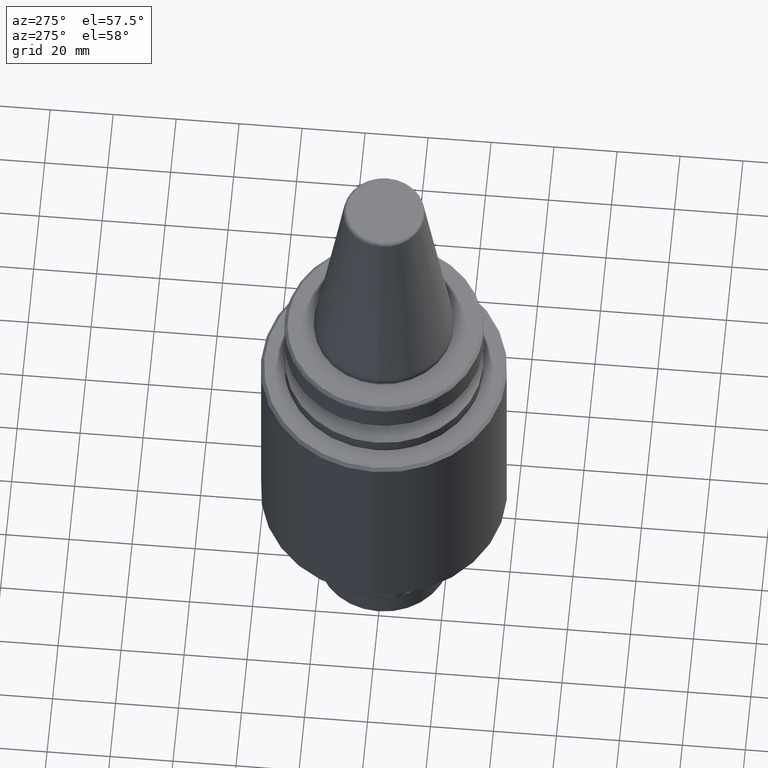
[diagram: clean part render]
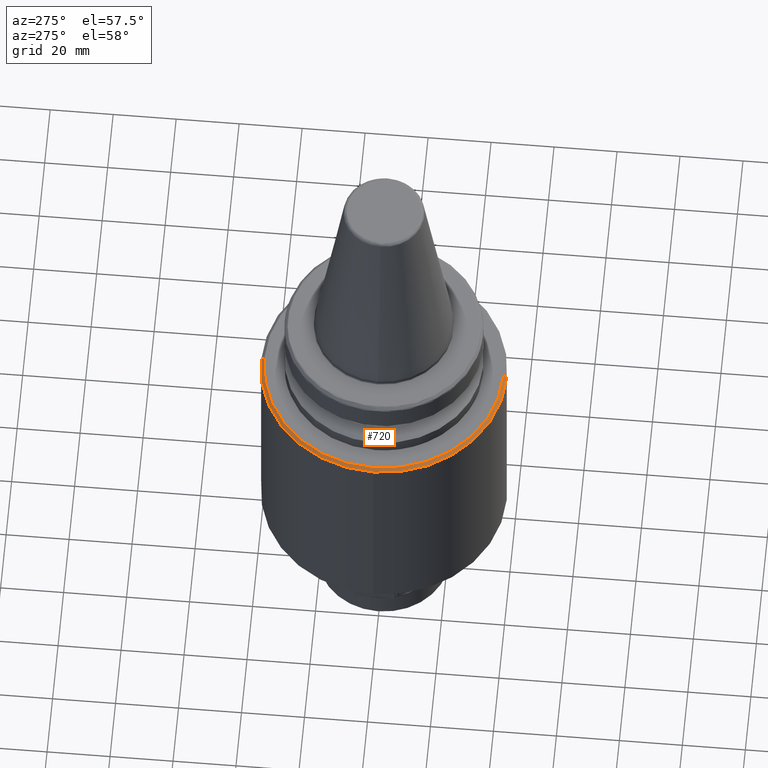
[diagram: same view with one face highlighted and labeled with its STEP entity id]
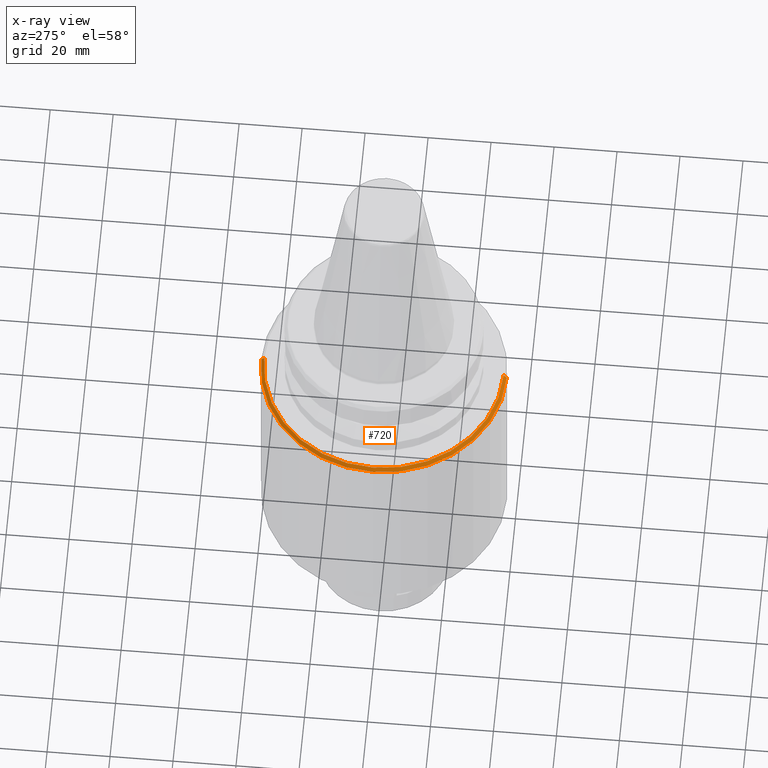
[diagram: x-ray of the same camera — body ghosted, the highlighted face saturated]
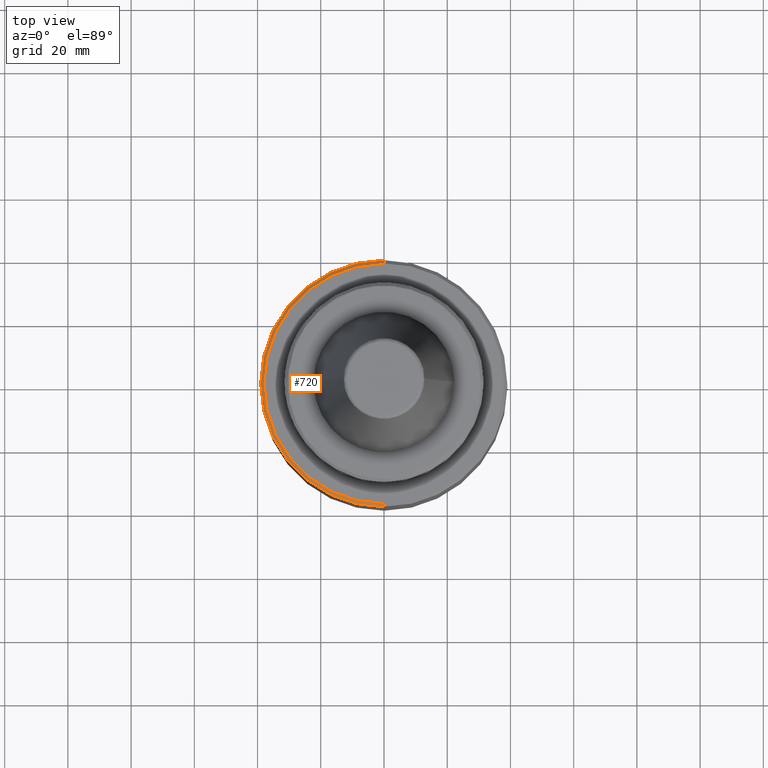
[diagram: same view with one face highlighted and labeled with its STEP entity id]
A machine part, auxiliary view. The second image highlights one B-rep face of the part: STEP entity #720.
The next image is the same camera in x-ray: the body ghosted, the highlighted face saturated — about 0% of this face is hidden behind the body in this view.
A second angle (top view) of the same face is appended — the face is thin or edge-on in the first view.
In plain terms, the highlighted conical surface has half-angle 45 deg.
Its self-contained STEP definition (entity closure, byte-faithful):
#80 = VERTEX_POINT ( 'NONE', #245 ) ;
#245 = CARTESIAN_POINT ( 'NONE',  ( -39.00000000000000000, 4.776122516674677900E-015, -27.11715728800000100 ) ) ;
#291 = DIRECTION ( 'NONE',  ( 1.000000000000000000, 0.0000000000000000000, -8.896017825522088100E-017 ) ) ;
#294 = DIRECTION ( 'NONE',  ( 0.0000000000000000000, 0.0000000000000000000, 1.000000000000000000 ) ) ;
#301 = CARTESIAN_POINT ( 'NONE',  ( 0.0000000000000000000, 0.0000000000000000000, -27.11715728800000100 ) ) ;
#391 = EDGE_CURVE ( 'NONE', #2177, #2417, #1273, .T. ) ;
#538 = ORIENTED_EDGE ( 'NONE', *, *, #2086, .F. ) ;
#599 = ORIENTED_EDGE ( 'NONE', *, *, #391, .F. ) ;
#611 = ORIENTED_EDGE ( 'NONE', *, *, #957, .T. ) ;
#633 = CARTESIAN_POINT ( 'NONE',  ( 0.0000000000000000000, 0.0000000000000000000, -26.11715728800000500 ) ) ;
#697 = ORIENTED_EDGE ( 'NONE', *, *, #2046, .T. ) ;
#720 = ADVANCED_FACE ( 'NONE', ( #751 ), #2851, .T. ) ;
#729 = ORIENTED_EDGE ( 'NONE', *, *, #2290, .T. ) ;
#751 = FACE_OUTER_BOUND ( 'NONE', #1748, .T. ) ;
#767 = AXIS2_PLACEMENT_3D ( 'NONE', #633, #1742, #1732 ) ;
#939 = CARTESIAN_POINT ( 'NONE',  ( 0.0000000000000000000, 38.00000000000000000, -26.11715728800000100 ) ) ;
#956 = VERTEX_POINT ( 'NONE', #1434 ) ;
#957 = EDGE_CURVE ( 'NONE', #2177, #956, #2692, .T. ) ;
#1166 = AXIS2_PLACEMENT_3D ( 'NONE', #2329, #2334, #2337 ) ;
#1248 = DIRECTION ( 'NONE',  ( 0.0000000000000000000, 0.7071067811865474600, -0.7071067811865475700 ) ) ;
#1273 = CIRCLE ( 'NONE', #1166, 38.00000000000000700 ) ;
#1434 = CARTESIAN_POINT ( 'NONE',  ( 0.0000000000000000000, 39.00000000000000000, -27.11715728800000100 ) ) ;
#1498 = CARTESIAN_POINT ( 'NONE',  ( 0.0000000000000000000, 0.0000000000000000000, -27.11715728800000100 ) ) ;
#1519 = DIRECTION ( 'NONE',  ( 0.0000000000000000000, 0.0000000000000000000, 1.000000000000000000 ) ) ;
#1533 = DIRECTION ( 'NONE',  ( 1.000000000000000000, 0.0000000000000000000, -8.896017825522088100E-017 ) ) ;
#1706 = VERTEX_POINT ( 'NONE', #2635 ) ;
#1728 = CIRCLE ( 'NONE', #2278, 39.00000000000000000 ) ;
#1732 = DIRECTION ( 'NONE',  ( 0.0000000000000000000, 1.000000000000000000, 9.130123557772668300E-017 ) ) ;
#1742 = DIRECTION ( 'NONE',  ( 0.0000000000000000000, 4.565061778886334800E-017, -1.000000000000000000 ) ) ;
#1748 = EDGE_LOOP ( 'NONE', ( #538, #599, #611, #697, #729 ) ) ;
#1863 = VECTOR ( 'NONE', #2998, 1000.000000000000000 ) ;
#1888 = LINE ( 'NONE', #3009, #1863 ) ;
#1892 = CIRCLE ( 'NONE', #2505, 39.00000000000000000 ) ;
#2046 = EDGE_CURVE ( 'NONE', #956, #80, #1892, .T. ) ;
#2086 = EDGE_CURVE ( 'NONE', #2417, #1706, #1888, .T. ) ;
#2177 = VERTEX_POINT ( 'NONE', #2880 ) ;
#2278 = AXIS2_PLACEMENT_3D ( 'NONE', #1498, #1519, #1533 ) ;
#2290 = EDGE_CURVE ( 'NONE', #80, #1706, #1728, .T. ) ;
#2329 = CARTESIAN_POINT ( 'NONE',  ( 0.0000000000000000000, 4.751471901946293500E-031, -26.11715728800001600 ) ) ;
#2334 = DIRECTION ( 'NONE',  ( -0.0000000000000000000, -4.565061778886334800E-017, 1.000000000000000000 ) ) ;
#2337 = DIRECTION ( 'NONE',  ( 0.0000000000000000000, 1.000000000000000000, 9.130123557772667100E-017 ) ) ;
#2417 = VERTEX_POINT ( 'NONE', #2436 ) ;
#2436 = CARTESIAN_POINT ( 'NONE',  ( 4.714890176717310300E-015, -38.00000000000000700, -26.11715728800001900 ) ) ;
#2505 = AXIS2_PLACEMENT_3D ( 'NONE', #301, #294, #291 ) ;
#2635 = CARTESIAN_POINT ( 'NONE',  ( 4.776122516674676300E-015, -38.99999999999999300, -27.11715728800000100 ) ) ;
#2690 = VECTOR ( 'NONE', #1248, 1000.000000000000000 ) ;
#2692 = LINE ( 'NONE', #939, #2690 ) ;
#2851 = CONICAL_SURFACE ( 'NONE', #767, 38.00000000000000000, 0.7853981633974482800 ) ;
#2880 = CARTESIAN_POINT ( 'NONE',  ( 0.0000000000000000000, 38.00000000000000700, -26.11715728800001200 ) ) ;
#2998 = DIRECTION ( 'NONE',  ( 8.659560562354931600E-017, -0.7071067811865474600, -0.7071067811865475700 ) ) ;
#3009 = CARTESIAN_POINT ( 'NONE',  ( 4.653657836759941900E-015, -38.00000000000000000, -26.11715728800000800 ) ) ;